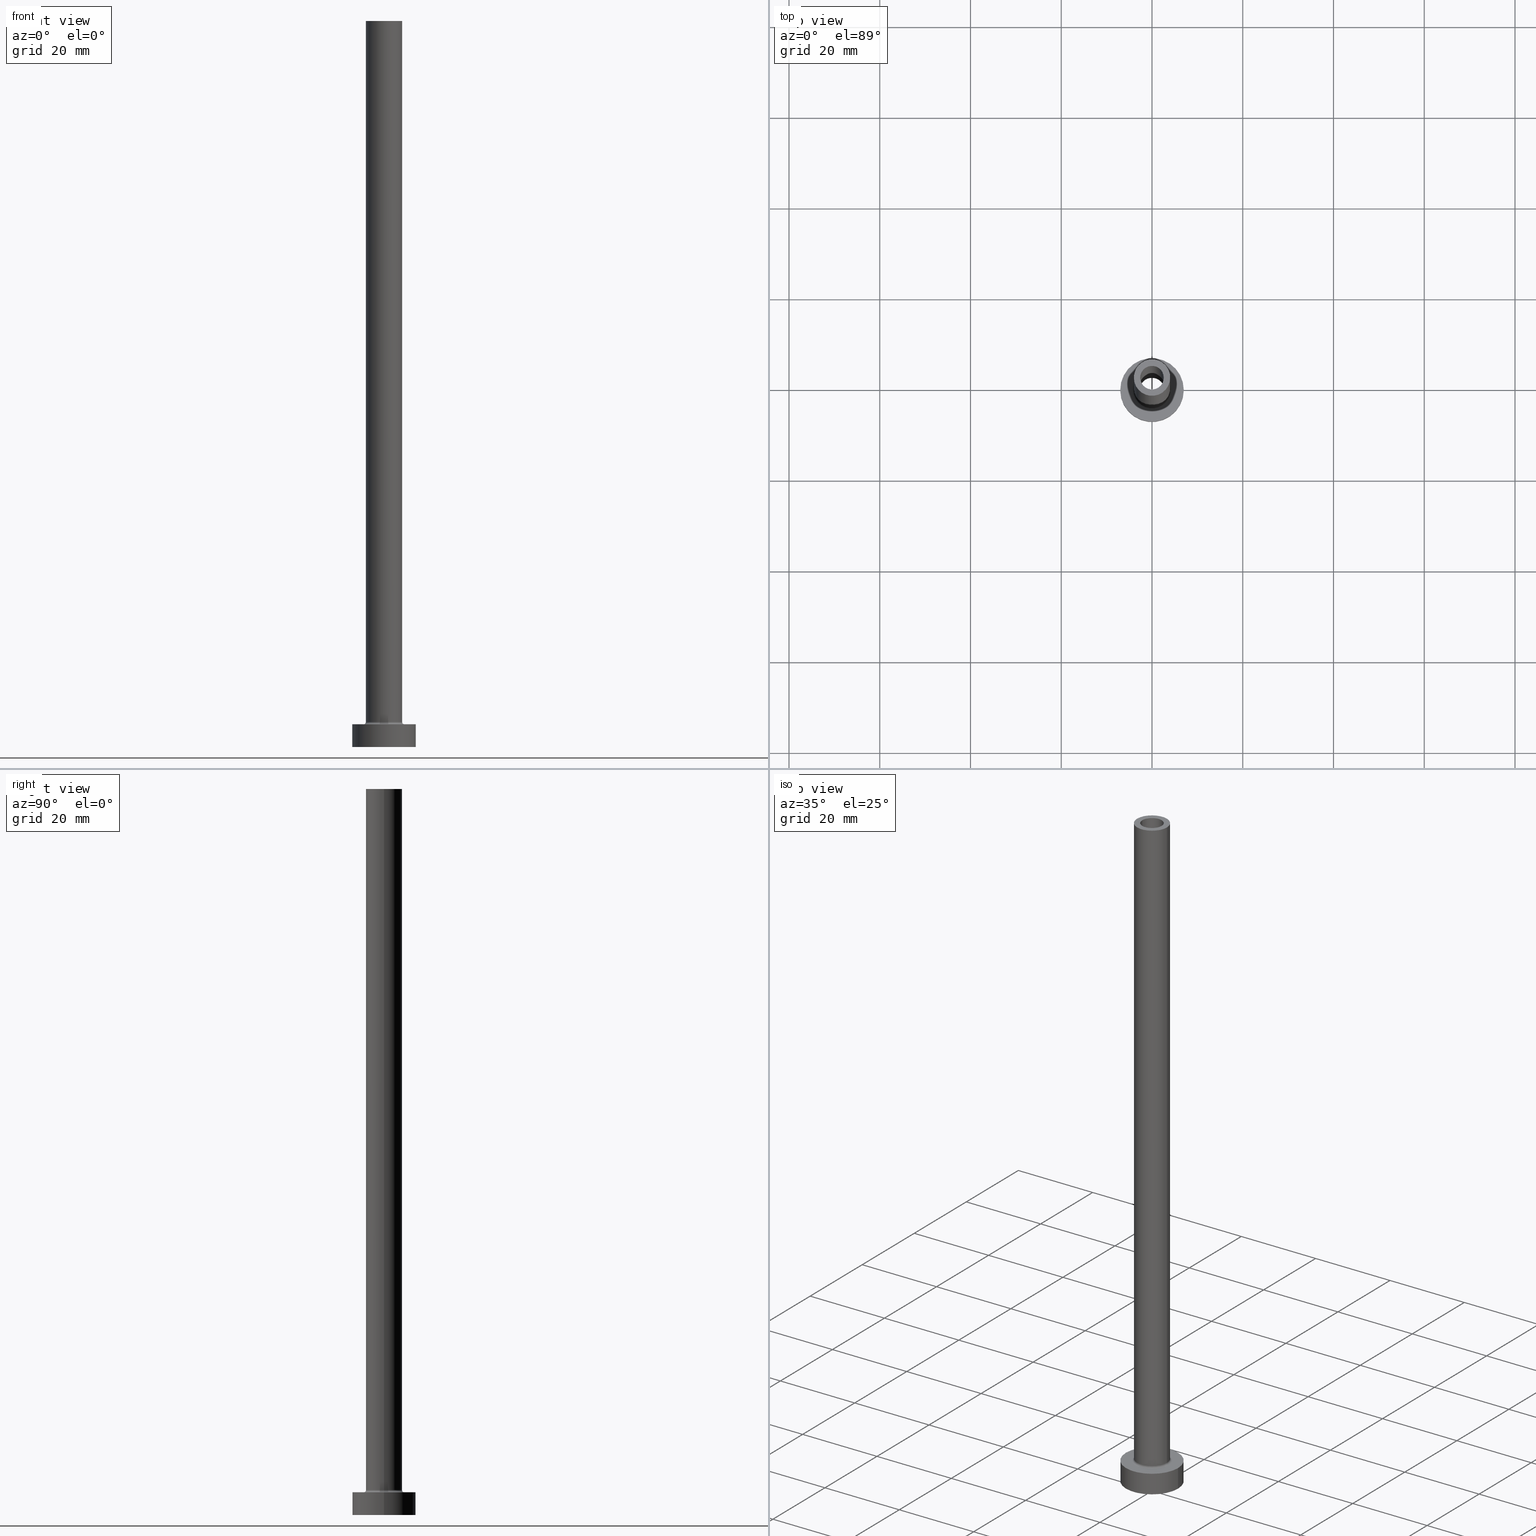
[diagram: canonical four-view strip — front | top / right | iso, engineering-drawing reading convention]
A machine part, canonical four-view strip (front | top / right | iso — engineering-drawing reading convention). The complete STEP part file that produces these views, byte-faithful:
ISO-10303-21;
HEADER;
FILE_DESCRIPTION (( 'STEP AP203' ),
    '1' );
FILE_NAME ('2006.STEP',
    '2023-02-13T10:11:37',
    ( '' ),
    ( '' ),
    'SwSTEP 2.0',
    'SolidWorks 2019',
    '' );
FILE_SCHEMA (( 'CONFIG_CONTROL_DESIGN' ));
ENDSEC;

DATA;
#1 = CARTESIAN_POINT ( 'NONE',  ( 0.000000000000000000, 0.000000000000000000, 115.0000000000000000 ) ) ;
#2 = EDGE_LOOP ( 'NONE', ( #338, #50, #392, #229 ) ) ;
#3 = DIRECTION ( 'NONE',  ( -1.000000000000000000, 0.000000000000000000, 0.000000000000000000 ) ) ;
#4 = EDGE_CURVE ( 'NONE', #188, #99, #250, .T. ) ;
#5 = ORIENTED_EDGE ( 'NONE', *, *, #15, .F. ) ;
#6 = CC_DESIGN_APPROVAL ( #333, ( #211 ) ) ;
#7 = CIRCLE ( 'NONE', #41, 7.000000000000000000 ) ;
#8 = VERTEX_POINT ( 'NONE', #164 ) ;
#9 = DATE_TIME_ROLE ( 'classification_date' ) ;
#10 = CARTESIAN_POINT ( 'NONE',  ( 0.000000000000000000, 0.000000000000000000, 160.0000000000000000 ) ) ;
#11 = EDGE_LOOP ( 'NONE', ( #12, #327, #432, #411 ) ) ;
#12 = ORIENTED_EDGE ( 'NONE', *, *, #398, .F. ) ;
#13 = VECTOR ( 'NONE', #113, 1000.000000000000000 ) ;
#14 = CIRCLE ( 'NONE', #458, 4.000000000000000000 ) ;
#15 = EDGE_CURVE ( 'NONE', #251, #84, #7, .T. ) ;
#16 = AXIS2_PLACEMENT_3D ( 'NONE', #373, #163, #19 ) ;
#17 = CARTESIAN_POINT ( 'NONE',  ( 0.000000000000000000, 0.000000000000000000, 160.0000000000000000 ) ) ;
#18 = CYLINDRICAL_SURFACE ( 'NONE', #236, 7.000000000000000000 ) ;
#19 = DIRECTION ( 'NONE',  ( 1.000000000000000000, 0.000000000000000000, 0.000000000000000000 ) ) ;
#20 = DIRECTION ( 'NONE',  ( -0.000000000000000000, -0.000000000000000000, -1.000000000000000000 ) ) ;
#21 = APPROVAL ( #350, 'NEUR�EN�' ) ;
#22 = MANIFOLD_SOLID_BREP ( 'Odebrat vysunut�m4', #111 ) ;
#23 = CARTESIAN_POINT ( 'NONE',  ( 0.000000000000000000, 0.000000000000000000, 0.000000000000000000 ) ) ;
#24 = AXIS2_PLACEMENT_3D ( 'NONE', #304, #136, #420 ) ;
#25 = CARTESIAN_POINT ( 'NONE',  ( 0.000000000000000000, 0.000000000000000000, 160.0000000000000000 ) ) ;
#26 = MECHANICAL_CONTEXT ( 'NONE', #128, 'mechanical' ) ;
#27 = ORIENTED_EDGE ( 'NONE', *, *, #384, .F. ) ;
#28 = EDGE_CURVE ( 'NONE', #325, #92, #57, .T. ) ;
#29 = DATE_TIME_ROLE ( 'creation_date' ) ;
#30 = DIRECTION ( 'NONE',  ( 1.000000000000000000, 0.000000000000000000, 0.000000000000000000 ) ) ;
#31 = CARTESIAN_POINT ( 'NONE',  ( 0.000000000000000000, 0.000000000000000000, 5.000000000000000000 ) ) ;
#32 = AXIS2_PLACEMENT_3D ( 'NONE', #408, #302, #235 ) ;
#33 = UNCERTAINTY_MEASURE_WITH_UNIT (LENGTH_MEASURE( 1.000000000000000082E-05 ), #334, 'distance_accuracy_value', 'NONE');
#34 = PERSON_AND_ORGANIZATION ( #424, #371 ) ;
#35 = CARTESIAN_POINT ( 'NONE',  ( -2.600000000000000089, 0.000000000000000000, 160.0000000000000000 ) ) ;
#36 = DIRECTION ( 'NONE',  ( 0.000000000000000000, -1.000000000000000000, 0.000000000000000000 ) ) ;
#37 = EDGE_CURVE ( 'NONE', #291, #409, #176, .T. ) ;
#38 = PERSON_AND_ORGANIZATION_ROLE ( 'classification_officer' ) ;
#39 = APPROVAL_PERSON_ORGANIZATION ( #172, #328, #148 ) ;
#40 = CARTESIAN_POINT ( 'NONE',  ( -7.000000000000000000, 0.000000000000000000, 5.000000000000000000 ) ) ;
#41 = AXIS2_PLACEMENT_3D ( 'NONE', #234, #133, #199 ) ;
#42 = EDGE_LOOP ( 'NONE', ( #222, #121, #400, #395 ) ) ;
#43 = VECTOR ( 'NONE', #187, 1000.000000000000000 ) ;
#44 = CARTESIAN_POINT ( 'NONE',  ( -2.750000000000000000, 0.000000000000000000, 122.7781745930520287 ) ) ;
#45 = ORIENTED_EDGE ( 'NONE', *, *, #46, .F. ) ;
#46 = EDGE_CURVE ( 'NONE', #233, #224, #62, .T. ) ;
#47 = FACE_OUTER_BOUND ( 'NONE', #11, .T. ) ;
#48 = ORIENTED_EDGE ( 'NONE', *, *, #90, .T. ) ;
#49 = CARTESIAN_POINT ( 'NONE',  ( 2.750000000000000000, 3.367778697655221012E-16, 122.7781745930520287 ) ) ;
#50 = ORIENTED_EDGE ( 'NONE', *, *, #252, .T. ) ;
#51 = EDGE_LOOP ( 'NONE', ( #330, #378 ) ) ;
#52 = FACE_OUTER_BOUND ( 'NONE', #117, .T. ) ;
#53 = ORIENTED_EDGE ( 'NONE', *, *, #318, .F. ) ;
#54 = LINE ( 'NONE', #375, #77 ) ;
#55 = VERTEX_POINT ( 'NONE', #443 ) ;
#56 = AXIS2_PLACEMENT_3D ( 'NONE', #405, #444, #135 ) ;
#57 = CIRCLE ( 'NONE', #79, 2.750000000000000000 ) ;
#58 = DIRECTION ( 'NONE',  ( 0.000000000000000000, 0.000000000000000000, 1.000000000000000000 ) ) ;
#59 = DIRECTION ( 'NONE',  ( 1.000000000000000000, 0.000000000000000000, 0.000000000000000000 ) ) ;
#60 = CC_DESIGN_PERSON_AND_ORGANIZATION_ASSIGNMENT ( #140, #348, ( #211 ) ) ;
#61 = DIRECTION ( 'NONE',  ( -1.000000000000000000, 0.000000000000000000, 0.000000000000000000 ) ) ;
#62 = LINE ( 'NONE', #173, #430 ) ;
#63 = DIRECTION ( 'NONE',  ( -0.000000000000000000, -0.000000000000000000, -1.000000000000000000 ) ) ;
#64 = AXIS2_PLACEMENT_3D ( 'NONE', #339, #445, #269 ) ;
#65 = AXIS2_PLACEMENT_3D ( 'NONE', #1, #365, #115 ) ;
#66 = DIRECTION ( 'NONE',  ( -0.000000000000000000, -0.000000000000000000, -1.000000000000000000 ) ) ;
#67 = DIRECTION ( 'NONE',  ( 0.000000000000000000, 0.000000000000000000, 1.000000000000000000 ) ) ;
#68 = FACE_BOUND ( 'NONE', #287, .T. ) ;
#69 = LOCAL_TIME ( 11, 11, 37.00000000000000000, #174 ) ;
#70 = CYLINDRICAL_SURFACE ( 'NONE', #150, 2.750000000000000000 ) ;
#71 = TOROIDAL_SURFACE ( 'NONE', #387, 4.500000000000000888, 0.5000000000000000000 ) ;
#72 = APPROVAL_ROLE ( '' ) ;
#73 = EDGE_CURVE ( 'NONE', #8, #369, #116, .T. ) ;
#74 = LINE ( 'NONE', #311, #147 ) ;
#75 = ORIENTED_EDGE ( 'NONE', *, *, #346, .F. ) ;
#76 = SHAPE_DEFINITION_REPRESENTATION ( #94, #322 ) ;
#77 = VECTOR ( 'NONE', #63, 1000.000000000000000 ) ;
#78 = LINE ( 'NONE', #44, #43 ) ;
#79 = AXIS2_PLACEMENT_3D ( 'NONE', #335, #66, #203 ) ;
#80 = VERTEX_POINT ( 'NONE', #440 ) ;
#81 = EDGE_LOOP ( 'NONE', ( #194, #227 ) ) ;
#82 = COORDINATED_UNIVERSAL_TIME_OFFSET ( 1, 0, .AHEAD. ) ;
#83 = DIRECTION ( 'NONE',  ( 1.000000000000000000, 0.000000000000000000, 0.000000000000000000 ) ) ;
#84 = VERTEX_POINT ( 'NONE', #306 ) ;
#85 = CARTESIAN_POINT ( 'NONE',  ( 0.000000000000000000, 0.000000000000000000, 160.0000000000000000 ) ) ;
#86 = VECTOR ( 'NONE', #193, 1000.000000000000000 ) ;
#87 = ORIENTED_EDGE ( 'NONE', *, *, #300, .T. ) ;
#88 = AXIS2_PLACEMENT_3D ( 'NONE', #143, #239, #208 ) ;
#89 = DIRECTION ( 'NONE',  ( -0.000000000000000000, -0.000000000000000000, -1.000000000000000000 ) ) ;
#90 = EDGE_CURVE ( 'NONE', #332, #233, #379, .T. ) ;
#91 = ORIENTED_EDGE ( 'NONE', *, *, #346, .T. ) ;
#92 = VERTEX_POINT ( 'NONE', #138 ) ;
#93 = CARTESIAN_POINT ( 'NONE',  ( 0.000000000000000000, 0.000000000000000000, 160.0000000000000000 ) ) ;
#94 = PRODUCT_DEFINITION_SHAPE ( 'NONE', 'NONE',  #283 ) ;
#95 =( GEOMETRIC_REPRESENTATION_CONTEXT ( 3 ) GLOBAL_UNCERTAINTY_ASSIGNED_CONTEXT ( ( #33 ) ) GLOBAL_UNIT_ASSIGNED_CONTEXT ( ( #334, #200, #167 ) ) REPRESENTATION_CONTEXT ( 'NONE', 'WORKASPACE' ) );
#96 = ADVANCED_FACE ( 'NONE', ( #404 ), #71, .F. ) ;
#97 = CARTESIAN_POINT ( 'NONE',  ( 0.000000000000000000, 0.000000000000000000, 5.000000000000000000 ) ) ;
#98 = FACE_OUTER_BOUND ( 'NONE', #220, .T. ) ;
#99 = VERTEX_POINT ( 'NONE', #168 ) ;
#100 = AXIS2_PLACEMENT_3D ( 'NONE', #442, #131, #165 ) ;
#101 = AXIS2_PLACEMENT_3D ( 'NONE', #31, #213, #184 ) ;
#102 = APPROVAL_DATE_TIME ( #106, #328 ) ;
#103 = APPROVAL_PERSON_ORGANIZATION ( #241, #333, #72 ) ;
#104 = DIRECTION ( 'NONE',  ( 0.000000000000000000, 0.000000000000000000, -1.000000000000000000 ) ) ;
#105 = ADVANCED_FACE ( 'NONE', ( #98 ), #18, .T. ) ;
#106 = DATE_AND_TIME ( #412, #344 ) ;
#107 = CARTESIAN_POINT ( 'NONE',  ( 0.000000000000000000, 0.000000000000000000, 5.000000000000000000 ) ) ;
#108 = DIRECTION ( 'NONE',  ( 0.000000000000000000, 0.000000000000000000, 1.000000000000000000 ) ) ;
#109 = CC_DESIGN_DATE_AND_TIME_ASSIGNMENT ( #359, #9, ( #324 ) ) ;
#110 = CARTESIAN_POINT ( 'NONE',  ( 0.000000000000000000, 0.000000000000000000, 5.000000000000000000 ) ) ;
#111 = CLOSED_SHELL ( 'NONE', ( #340, #162, #96, #292, #217, #105, #240, #271, #144, #261, #122, #280, #191, #410 ) ) ;
#112 = DIRECTION ( 'NONE',  ( 0.000000000000000000, 0.000000000000000000, 1.000000000000000000 ) ) ;
#113 = DIRECTION ( 'NONE',  ( -0.000000000000000000, -0.000000000000000000, -1.000000000000000000 ) ) ;
#114 = EDGE_CURVE ( 'NONE', #155, #224, #169, .T. ) ;
#115 = DIRECTION ( 'NONE',  ( 1.000000000000000000, 0.000000000000000000, 0.000000000000000000 ) ) ;
#116 = CIRCLE ( 'NONE', #364, 4.500000000000000888 ) ;
#117 = EDGE_LOOP ( 'NONE', ( #352, #5 ) ) ;
#118 = LINE ( 'NONE', #49, #86 ) ;
#119 = ORIENTED_EDGE ( 'NONE', *, *, #307, .T. ) ;
#120 = DIRECTION ( 'NONE',  ( -0.000000000000000000, -0.000000000000000000, -1.000000000000000000 ) ) ;
#121 = ORIENTED_EDGE ( 'NONE', *, *, #393, .T. ) ;
#122 = ADVANCED_FACE ( 'NONE', ( #376 ), #226, .F. ) ;
#123 = CARTESIAN_POINT ( 'NONE',  ( 0.000000000000000000, 0.000000000000000000, 0.000000000000000000 ) ) ;
#124 = ORIENTED_EDGE ( 'NONE', *, *, #450, .T. ) ;
#125 = CIRCLE ( 'NONE', #353, 2.750000000000000000 ) ;
#126 = DIRECTION ( 'NONE',  ( 1.000000000000000000, 0.000000000000000000, 0.000000000000000000 ) ) ;
#127 = ORIENTED_EDGE ( 'NONE', *, *, #459, .F. ) ;
#128 = APPLICATION_CONTEXT ( 'configuration controlled 3d designs of mechanical parts and assemblies' ) ;
#129 = DIRECTION ( 'NONE',  ( 1.000000000000000000, 0.000000000000000000, 0.000000000000000000 ) ) ;
#130 = CC_DESIGN_PERSON_AND_ORGANIZATION_ASSIGNMENT ( #238, #385, ( #283 ) ) ;
#131 = DIRECTION ( 'NONE',  ( 0.000000000000000000, 0.000000000000000000, 1.000000000000000000 ) ) ;
#132 = DIRECTION ( 'NONE',  ( -0.000000000000000000, -0.000000000000000000, -1.000000000000000000 ) ) ;
#133 = DIRECTION ( 'NONE',  ( 0.000000000000000000, 0.000000000000000000, 1.000000000000000000 ) ) ;
#134 = PRODUCT ( '2006', '2006', '', ( #26 ) ) ;
#135 = DIRECTION ( 'NONE',  ( 1.000000000000000000, 0.000000000000000000, 0.000000000000000000 ) ) ;
#136 = DIRECTION ( 'NONE',  ( 0.000000000000000000, 0.000000000000000000, 1.000000000000000000 ) ) ;
#137 = EDGE_CURVE ( 'NONE', #192, #8, #183, .T. ) ;
#138 = CARTESIAN_POINT ( 'NONE',  ( 2.750000000000000000, 3.367778697655221012E-16, 0.000000000000000000 ) ) ;
#139 = APPROVAL_PERSON_ORGANIZATION ( #401, #21, #182 ) ;
#140 = PERSON_AND_ORGANIZATION ( #424, #371 ) ;
#141 = DIRECTION ( 'NONE',  ( 0.000000000000000000, 0.000000000000000000, 1.000000000000000000 ) ) ;
#142 = APPLICATION_PROTOCOL_DEFINITION ( 'international standard', 'config_control_design', 1994, #128 ) ;
#143 = CARTESIAN_POINT ( 'NONE',  ( 0.000000000000000000, 0.000000000000000000, 160.0000000000000000 ) ) ;
#144 = ADVANCED_FACE ( 'NONE', ( #389 ), #342, .T. ) ;
#145 = CALENDAR_DATE ( 2023, 13, 2 ) ;
#146 = CARTESIAN_POINT ( 'NONE',  ( -4.500000000000000888, 5.510910596163089556E-16, 5.500000000000005329 ) ) ;
#147 = VECTOR ( 'NONE', #272, 1000.000000000000000 ) ;
#148 = APPROVAL_ROLE ( '' ) ;
#149 = DIRECTION ( 'NONE',  ( 1.224646799147353207E-16, 1.000000000000000000, -0.000000000000000000 ) ) ;
#150 = AXIS2_PLACEMENT_3D ( 'NONE', #275, #278, #349 ) ;
#151 = ORIENTED_EDGE ( 'NONE', *, *, #231, .F. ) ;
#152 = EDGE_LOOP ( 'NONE', ( #363, #75 ) ) ;
#153 = CC_DESIGN_APPROVAL ( #328, ( #283 ) ) ;
#154 = CARTESIAN_POINT ( 'NONE',  ( 0.000000000000000000, 0.000000000000000000, 5.000000000000000000 ) ) ;
#155 = VERTEX_POINT ( 'NONE', #179 ) ;
#156 = CALENDAR_DATE ( 2023, 13, 2 ) ;
#157 = EDGE_LOOP ( 'NONE', ( #216, #119, #246, #53 ) ) ;
#158 = CYLINDRICAL_SURFACE ( 'NONE', #456, 4.000000000000000000 ) ;
#159 = EDGE_LOOP ( 'NONE', ( #428, #439 ) ) ;
#160 = AXIS2_PLACEMENT_3D ( 'NONE', #452, #67, #454 ) ;
#161 = ORIENTED_EDGE ( 'NONE', *, *, #209, .F. ) ;
#162 = ADVANCED_FACE ( 'NONE', ( #243 ), #70, .F. ) ;
#163 = DIRECTION ( 'NONE',  ( 0.000000000000000000, 0.000000000000000000, 1.000000000000000000 ) ) ;
#164 = CARTESIAN_POINT ( 'NONE',  ( 4.500000000000000888, 0.000000000000000000, 5.000000000000002665 ) ) ;
#165 = DIRECTION ( 'NONE',  ( 1.000000000000000000, 0.000000000000000000, 0.000000000000000000 ) ) ;
#166 = DIRECTION ( 'NONE',  ( 0.000000000000000000, 0.000000000000000000, 1.000000000000000000 ) ) ;
#167 =( NAMED_UNIT ( * ) SI_UNIT ( $, .STERADIAN. ) SOLID_ANGLE_UNIT ( ) );
#168 = CARTESIAN_POINT ( 'NONE',  ( 4.000000000000000000, 4.898587196589412829E-16, 160.0000000000000000 ) ) ;
#169 = CIRCLE ( 'NONE', #32, 2.600000000000000089 ) ;
#170 = DIRECTION ( 'NONE',  ( 0.000000000000000000, 0.000000000000000000, 1.000000000000000000 ) ) ;
#171 = CARTESIAN_POINT ( 'NONE',  ( 4.500000000000000888, 0.000000000000000000, 5.500000000000005329 ) ) ;
#172 = PERSON_AND_ORGANIZATION ( #424, #371 ) ;
#173 = CARTESIAN_POINT ( 'NONE',  ( 2.600000000000000089, 3.184081677783117698E-16, 160.0000000000000000 ) ) ;
#174 = COORDINATED_UNIVERSAL_TIME_OFFSET ( 1, 0, .AHEAD. ) ;
#175 = CARTESIAN_POINT ( 'NONE',  ( 0.000000000000000000, 0.000000000000000000, 5.500000000000005329 ) ) ;
#176 = CIRCLE ( 'NONE', #64, 7.000000000000000000 ) ;
#177 = CC_DESIGN_PERSON_AND_ORGANIZATION_ASSIGNMENT ( #34, #449, ( #211 ) ) ;
#178 = CARTESIAN_POINT ( 'NONE',  ( 0.000000000000000000, 0.000000000000000000, 115.0000000000000000 ) ) ;
#179 = CARTESIAN_POINT ( 'NONE',  ( -2.600000000000000089, 0.000000000000000000, 115.0000000000000000 ) ) ;
#180 = SECURITY_CLASSIFICATION_LEVEL ( 'unclassified' ) ;
#181 = PLANE ( 'NONE',  #296 ) ;
#182 = APPROVAL_ROLE ( '' ) ;
#183 = CIRCLE ( 'NONE', #331, 0.5000000000000004441 ) ;
#184 = DIRECTION ( 'NONE',  ( -1.000000000000000000, 0.000000000000000000, 0.000000000000000000 ) ) ;
#185 = AXIS2_PLACEMENT_3D ( 'NONE', #93, #202, #61 ) ;
#186 = EDGE_CURVE ( 'NONE', #192, #55, #14, .T. ) ;
#187 = DIRECTION ( 'NONE',  ( 0.000000000000000000, 0.000000000000000000, -1.000000000000000000 ) ) ;
#188 = VERTEX_POINT ( 'NONE', #309 ) ;
#189 = CARTESIAN_POINT ( 'NONE',  ( -4.500000000000000888, 5.510910596163088569E-16, 5.000000000000002665 ) ) ;
#190 = ORIENTED_EDGE ( 'NONE', *, *, #137, .F. ) ;
#191 = ADVANCED_FACE ( 'NONE', ( #68, #317 ), #386, .F. ) ;
#192 = VERTEX_POINT ( 'NONE', #451 ) ;
#193 = DIRECTION ( 'NONE',  ( 0.000000000000000000, 0.000000000000000000, -1.000000000000000000 ) ) ;
#194 = ORIENTED_EDGE ( 'NONE', *, *, #73, .T. ) ;
#195 = ORIENTED_EDGE ( 'NONE', *, *, #366, .F. ) ;
#196 = FACE_OUTER_BOUND ( 'NONE', #206, .T. ) ;
#197 = VECTOR ( 'NONE', #431, 1000.000000000000000 ) ;
#198 = ORIENTED_EDGE ( 'NONE', *, *, #398, .T. ) ;
#199 = DIRECTION ( 'NONE',  ( 1.000000000000000000, 0.000000000000000000, 0.000000000000000000 ) ) ;
#200 =( NAMED_UNIT ( * ) PLANE_ANGLE_UNIT ( ) SI_UNIT ( $, .RADIAN. ) );
#201 = EDGE_LOOP ( 'NONE', ( #374, #198 ) ) ;
#202 = DIRECTION ( 'NONE',  ( 0.000000000000000000, 0.000000000000000000, -1.000000000000000000 ) ) ;
#203 = DIRECTION ( 'NONE',  ( 1.000000000000000000, 0.000000000000000000, 0.000000000000000000 ) ) ;
#204 = EDGE_CURVE ( 'NONE', #409, #291, #258, .T. ) ;
#205 = CIRCLE ( 'NONE', #438, 2.600000000000000089 ) ;
#206 = EDGE_LOOP ( 'NONE', ( #45, #91, #434, #372 ) ) ;
#207 = APPLICATION_CONTEXT ( 'configuration controlled 3d designs of mechanical parts and assemblies' ) ;
#208 = DIRECTION ( 'NONE',  ( -1.000000000000000000, 0.000000000000000000, 0.000000000000000000 ) ) ;
#209 = EDGE_CURVE ( 'NONE', #55, #369, #295, .T. ) ;
#210 = LINE ( 'NONE', #35, #355 ) ;
#211 = PRODUCT_DEFINITION_FORMATION_WITH_SPECIFIED_SOURCE ( 'LIBOVOLN�', '', #134, .NOT_KNOWN. ) ;
#212 = CALENDAR_DATE ( 2023, 13, 2 ) ;
#213 = DIRECTION ( 'NONE',  ( -0.000000000000000000, -0.000000000000000000, -1.000000000000000000 ) ) ;
#214 = FACE_BOUND ( 'NONE', #81, .T. ) ;
#215 = DIRECTION ( 'NONE',  ( 1.000000000000000000, 0.000000000000000000, 0.000000000000000000 ) ) ;
#216 = ORIENTED_EDGE ( 'NONE', *, *, #425, .T. ) ;
#217 = ADVANCED_FACE ( 'NONE', ( #242 ), #417, .T. ) ;
#218 = LINE ( 'NONE', #357, #197 ) ;
#219 = AXIS2_PLACEMENT_3D ( 'NONE', #123, #329, #257 ) ;
#220 = EDGE_LOOP ( 'NONE', ( #320, #282, #284, #124 ) ) ;
#221 = DIRECTION ( 'NONE',  ( -1.000000000000000000, 0.000000000000000000, 0.000000000000000000 ) ) ;
#222 = ORIENTED_EDGE ( 'NONE', *, *, #307, .F. ) ;
#223 = DATE_AND_TIME ( #281, #237 ) ;
#224 = VERTEX_POINT ( 'NONE', #347 ) ;
#225 = FACE_BOUND ( 'NONE', #51, .T. ) ;
#226 = TOROIDAL_SURFACE ( 'NONE', #24, 4.500000000000000888, 0.5000000000000000000 ) ;
#227 = ORIENTED_EDGE ( 'NONE', *, *, #366, .T. ) ;
#228 = DIRECTION ( 'NONE',  ( 1.000000000000000000, 0.000000000000000000, 0.000000000000000000 ) ) ;
#229 = ORIENTED_EDGE ( 'NONE', *, *, #268, .F. ) ;
#230 = DIRECTION ( 'NONE',  ( 0.000000000000000000, 0.000000000000000000, 1.000000000000000000 ) ) ;
#231 = EDGE_CURVE ( 'NONE', #332, #155, #210, .T. ) ;
#232 = CIRCLE ( 'NONE', #273, 2.750000000000000000 ) ;
#233 = VERTEX_POINT ( 'NONE', #461 ) ;
#234 = CARTESIAN_POINT ( 'NONE',  ( 0.000000000000000000, 0.000000000000000000, 0.000000000000000000 ) ) ;
#235 = DIRECTION ( 'NONE',  ( 1.000000000000000000, 0.000000000000000000, 0.000000000000000000 ) ) ;
#236 = AXIS2_PLACEMENT_3D ( 'NONE', #441, #132, #266 ) ;
#237 = LOCAL_TIME ( 11, 11, 37.00000000000000000, #460 ) ;
#238 = PERSON_AND_ORGANIZATION ( #424, #371 ) ;
#239 = DIRECTION ( 'NONE',  ( -0.000000000000000000, -0.000000000000000000, -1.000000000000000000 ) ) ;
#240 = ADVANCED_FACE ( 'NONE', ( #214, #422 ), #413, .T. ) ;
#241 = PERSON_AND_ORGANIZATION ( #424, #371 ) ;
#242 = FACE_OUTER_BOUND ( 'NONE', #2, .T. ) ;
#243 = FACE_OUTER_BOUND ( 'NONE', #157, .T. ) ;
#244 = CARTESIAN_POINT ( 'NONE',  ( 7.000000000000000000, 8.572527594031473190E-16, 0.000000000000000000 ) ) ;
#245 = DIRECTION ( 'NONE',  ( 1.000000000000000000, 0.000000000000000000, -0.000000000000000000 ) ) ;
#246 = ORIENTED_EDGE ( 'NONE', *, *, #380, .T. ) ;
#247 = DIRECTION ( 'NONE',  ( 0.000000000000000000, 0.000000000000000000, -1.000000000000000000 ) ) ;
#248 = ORIENTED_EDGE ( 'NONE', *, *, #73, .F. ) ;
#249 = AXIS2_PLACEMENT_3D ( 'NONE', #10, #288, #3 ) ;
#250 = CIRCLE ( 'NONE', #414, 4.000000000000000000 ) ;
#251 = VERTEX_POINT ( 'NONE', #244 ) ;
#252 = EDGE_CURVE ( 'NONE', #409, #251, #74, .T. ) ;
#253 = CARTESIAN_POINT ( 'NONE',  ( 0.000000000000000000, 0.000000000000000000, 0.000000000000000000 ) ) ;
#254 = ORIENTED_EDGE ( 'NONE', *, *, #209, .T. ) ;
#255 = FACE_OUTER_BOUND ( 'NONE', #403, .T. ) ;
#256 = ORIENTED_EDGE ( 'NONE', *, *, #4, .F. ) ;
#257 = DIRECTION ( 'NONE',  ( 1.000000000000000000, 0.000000000000000000, -0.000000000000000000 ) ) ;
#258 = CIRCLE ( 'NONE', #316, 7.000000000000000000 ) ;
#259 = AXIS2_PLACEMENT_3D ( 'NONE', #178, #108, #245 ) ;
#260 = ORIENTED_EDGE ( 'NONE', *, *, #137, .T. ) ;
#261 = ADVANCED_FACE ( 'NONE', ( #457, #453 ), #181, .T. ) ;
#262 = ORIENTED_EDGE ( 'NONE', *, *, #114, .T. ) ;
#263 = CARTESIAN_POINT ( 'NONE',  ( 0.000000000000000000, 0.000000000000000000, 115.0000000000000000 ) ) ;
#264 = DIRECTION ( 'NONE',  ( 1.000000000000000000, 0.000000000000000000, 0.000000000000000000 ) ) ;
#265 = AXIS2_PLACEMENT_3D ( 'NONE', #23, #170, #301 ) ;
#266 = DIRECTION ( 'NONE',  ( -1.000000000000000000, 0.000000000000000000, 0.000000000000000000 ) ) ;
#267 = AXIS2_PLACEMENT_3D ( 'NONE', #25, #447, #129 ) ;
#268 = EDGE_CURVE ( 'NONE', #291, #84, #351, .T. ) ;
#269 = DIRECTION ( 'NONE',  ( 1.000000000000000000, 0.000000000000000000, 0.000000000000000000 ) ) ;
#270 = ORIENTED_EDGE ( 'NONE', *, *, #204, .T. ) ;
#271 = ADVANCED_FACE ( 'NONE', ( #225, #52 ), #427, .F. ) ;
#272 = DIRECTION ( 'NONE',  ( -0.000000000000000000, -0.000000000000000000, -1.000000000000000000 ) ) ;
#273 = AXIS2_PLACEMENT_3D ( 'NONE', #253, #396, #83 ) ;
#274 = PERSON_AND_ORGANIZATION ( #424, #371 ) ;
#275 = CARTESIAN_POINT ( 'NONE',  ( 0.000000000000000000, 0.000000000000000000, 122.7781745930520287 ) ) ;
#276 = CARTESIAN_POINT ( 'NONE',  ( 0.000000000000000000, 0.000000000000000000, 160.0000000000000000 ) ) ;
#277 = VERTEX_POINT ( 'NONE', #360 ) ;
#278 = DIRECTION ( 'NONE',  ( 0.000000000000000000, 0.000000000000000000, -1.000000000000000000 ) ) ;
#279 = CIRCLE ( 'NONE', #56, 4.000000000000000000 ) ;
#280 = ADVANCED_FACE ( 'NONE', ( #426 ), #362, .F. ) ;
#281 = CALENDAR_DATE ( 2023, 13, 2 ) ;
#282 = ORIENTED_EDGE ( 'NONE', *, *, #37, .F. ) ;
#283 = PRODUCT_DEFINITION ( 'NEZN�M�', '', #211, #446 ) ;
#284 = ORIENTED_EDGE ( 'NONE', *, *, #268, .T. ) ;
#285 = AXIS2_PLACEMENT_3D ( 'NONE', #154, #89, #228 ) ;
#286 = DIRECTION ( 'NONE',  ( 0.000000000000000000, 0.000000000000000000, 1.000000000000000000 ) ) ;
#287 = EDGE_LOOP ( 'NONE', ( #262, #361 ) ) ;
#288 = DIRECTION ( 'NONE',  ( 0.000000000000000000, 0.000000000000000000, -1.000000000000000000 ) ) ;
#289 = EDGE_LOOP ( 'NONE', ( #367, #270 ) ) ;
#290 = CYLINDRICAL_SURFACE ( 'NONE', #249, 2.600000000000000089 ) ;
#291 = VERTEX_POINT ( 'NONE', #435 ) ;
#292 = ADVANCED_FACE ( 'NONE', ( #47 ), #158, .T. ) ;
#293 = LOCAL_TIME ( 11, 11, 37.00000000000000000, #82 ) ;
#294 = CARTESIAN_POINT ( 'NONE',  ( 7.000000000000000000, 8.572527594031473190E-16, 5.000000000000000000 ) ) ;
#295 = CIRCLE ( 'NONE', #437, 0.5000000000000004441 ) ;
#296 = AXIS2_PLACEMENT_3D ( 'NONE', #276, #315, #423 ) ;
#297 = EDGE_LOOP ( 'NONE', ( #161, #358, #260, #195 ) ) ;
#298 = DIRECTION ( 'NONE',  ( 0.000000000000000000, 0.000000000000000000, -1.000000000000000000 ) ) ;
#299 = CARTESIAN_POINT ( 'NONE',  ( 0.000000000000000000, 0.000000000000000000, 5.500000000000005329 ) ) ;
#300 = EDGE_CURVE ( 'NONE', #188, #55, #218, .T. ) ;
#301 = DIRECTION ( 'NONE',  ( 1.000000000000000000, 0.000000000000000000, 0.000000000000000000 ) ) ;
#302 = DIRECTION ( 'NONE',  ( 0.000000000000000000, 0.000000000000000000, 1.000000000000000000 ) ) ;
#303 = CYLINDRICAL_SURFACE ( 'NONE', #185, 2.600000000000000089 ) ;
#304 = CARTESIAN_POINT ( 'NONE',  ( 0.000000000000000000, 0.000000000000000000, 5.500000000000005329 ) ) ;
#305 = COORDINATED_UNIVERSAL_TIME_OFFSET ( 1, 0, .AHEAD. ) ;
#306 = CARTESIAN_POINT ( 'NONE',  ( -7.000000000000000000, 0.000000000000000000, 0.000000000000000000 ) ) ;
#307 = EDGE_CURVE ( 'NONE', #277, #92, #118, .T. ) ;
#308 = APPROVAL_DATE_TIME ( #345, #333 ) ;
#309 = CARTESIAN_POINT ( 'NONE',  ( -4.000000000000000000, 0.000000000000000000, 160.0000000000000000 ) ) ;
#310 = CIRCLE ( 'NONE', #16, 2.750000000000000000 ) ;
#311 = CARTESIAN_POINT ( 'NONE',  ( 7.000000000000000000, 8.572527594031473190E-16, 5.000000000000000000 ) ) ;
#312 = DIRECTION ( 'NONE',  ( 0.000000000000000000, 0.000000000000000000, -1.000000000000000000 ) ) ;
#313 = PRODUCT_RELATED_PRODUCT_CATEGORY ( 'detail', '', ( #134 ) ) ;
#314 = PERSON_AND_ORGANIZATION_ROLE ( 'design_owner' ) ;
#315 = DIRECTION ( 'NONE',  ( 0.000000000000000000, 0.000000000000000000, 1.000000000000000000 ) ) ;
#316 = AXIS2_PLACEMENT_3D ( 'NONE', #107, #141, #215 ) ;
#317 = FACE_OUTER_BOUND ( 'NONE', #159, .T. ) ;
#318 = EDGE_CURVE ( 'NONE', #80, #325, #78, .T. ) ;
#319 = DIRECTION ( 'NONE',  ( 1.000000000000000000, 0.000000000000000000, 0.000000000000000000 ) ) ;
#320 = ORIENTED_EDGE ( 'NONE', *, *, #252, .F. ) ;
#321 = CARTESIAN_POINT ( 'NONE',  ( 0.000000000000000000, 0.000000000000000000, 122.7781745930520287 ) ) ;
#322 = ADVANCED_BREP_SHAPE_REPRESENTATION ( '2006', ( #22, #160 ), #95 ) ;
#323 = EDGE_LOOP ( 'NONE', ( #127, #254, #248, #190 ) ) ;
#324 = SECURITY_CLASSIFICATION ( '', '', #180 ) ;
#325 = VERTEX_POINT ( 'NONE', #402 ) ;
#326 = CARTESIAN_POINT ( 'NONE',  ( -2.600000000000000089, 0.000000000000000000, 160.0000000000000000 ) ) ;
#327 = ORIENTED_EDGE ( 'NONE', *, *, #384, .T. ) ;
#328 = APPROVAL ( #416, 'NEUR�EN�' ) ;
#329 = DIRECTION ( 'NONE',  ( 0.000000000000000000, 0.000000000000000000, 1.000000000000000000 ) ) ;
#330 = ORIENTED_EDGE ( 'NONE', *, *, #28, .F. ) ;
#331 = AXIS2_PLACEMENT_3D ( 'NONE', #171, #36, #104 ) ;
#332 = VERTEX_POINT ( 'NONE', #326 ) ;
#333 = APPROVAL ( #388, 'NEUR�EN�' ) ;
#334 =( LENGTH_UNIT ( ) NAMED_UNIT ( * ) SI_UNIT ( .MILLI., .METRE. ) );
#335 = CARTESIAN_POINT ( 'NONE',  ( 0.000000000000000000, 0.000000000000000000, 0.000000000000000000 ) ) ;
#336 = DIRECTION ( 'NONE',  ( 1.000000000000000000, 0.000000000000000000, 0.000000000000000000 ) ) ;
#337 = CC_DESIGN_SECURITY_CLASSIFICATION ( #324, ( #211 ) ) ;
#338 = ORIENTED_EDGE ( 'NONE', *, *, #204, .F. ) ;
#339 = CARTESIAN_POINT ( 'NONE',  ( 0.000000000000000000, 0.000000000000000000, 5.000000000000000000 ) ) ;
#340 = ADVANCED_FACE ( 'NONE', ( #255 ), #290, .F. ) ;
#341 = PERSON_AND_ORGANIZATION ( #424, #371 ) ;
#342 = CYLINDRICAL_SURFACE ( 'NONE', #88, 4.000000000000000000 ) ;
#343 = DIRECTION ( 'NONE',  ( 1.000000000000000000, 0.000000000000000000, -0.000000000000000000 ) ) ;
#344 = LOCAL_TIME ( 11, 11, 37.00000000000000000, #305 ) ;
#345 = DATE_AND_TIME ( #212, #69 ) ;
#346 = EDGE_CURVE ( 'NONE', #233, #332, #205, .T. ) ;
#347 = CARTESIAN_POINT ( 'NONE',  ( 2.600000000000000089, 3.184081677783117698E-16, 115.0000000000000000 ) ) ;
#348 = PERSON_AND_ORGANIZATION_ROLE ( 'design_supplier' ) ;
#349 = DIRECTION ( 'NONE',  ( -1.000000000000000000, 0.000000000000000000, 0.000000000000000000 ) ) ;
#350 = APPROVAL_STATUS ( 'not_yet_approved' ) ;
#351 = LINE ( 'NONE', #40, #13 ) ;
#352 = ORIENTED_EDGE ( 'NONE', *, *, #450, .F. ) ;
#353 = AXIS2_PLACEMENT_3D ( 'NONE', #263, #58, #126 ) ;
#354 = EDGE_CURVE ( 'NONE', #224, #155, #448, .T. ) ;
#355 = VECTOR ( 'NONE', #312, 1000.000000000000000 ) ;
#356 = AXIS2_PLACEMENT_3D ( 'NONE', #321, #247, #221 ) ;
#357 = CARTESIAN_POINT ( 'NONE',  ( -4.000000000000000000, 0.000000000000000000, 160.0000000000000000 ) ) ;
#358 = ORIENTED_EDGE ( 'NONE', *, *, #186, .F. ) ;
#359 = DATE_AND_TIME ( #156, #293 ) ;
#360 = CARTESIAN_POINT ( 'NONE',  ( 2.750000000000000000, 3.367778697655221012E-16, 115.0000000000000000 ) ) ;
#361 = ORIENTED_EDGE ( 'NONE', *, *, #354, .T. ) ;
#362 = CYLINDRICAL_SURFACE ( 'NONE', #356, 2.750000000000000000 ) ;
#363 = ORIENTED_EDGE ( 'NONE', *, *, #90, .F. ) ;
#364 = AXIS2_PLACEMENT_3D ( 'NONE', #97, #20, #59 ) ;
#365 = DIRECTION ( 'NONE',  ( 0.000000000000000000, 0.000000000000000000, 1.000000000000000000 ) ) ;
#366 = EDGE_CURVE ( 'NONE', #369, #8, #429, .T. ) ;
#367 = ORIENTED_EDGE ( 'NONE', *, *, #37, .T. ) ;
#368 = EDGE_LOOP ( 'NONE', ( #27, #256, #87, #436 ) ) ;
#369 = VERTEX_POINT ( 'NONE', #189 ) ;
#370 = CC_DESIGN_PERSON_AND_ORGANIZATION_ASSIGNMENT ( #341, #314, ( #134 ) ) ;
#371 = ORGANIZATION ( 'NEUR�EN�', 'NEUR�EN�', '' ) ;
#372 = ORIENTED_EDGE ( 'NONE', *, *, #354, .F. ) ;
#373 = CARTESIAN_POINT ( 'NONE',  ( 0.000000000000000000, 0.000000000000000000, 115.0000000000000000 ) ) ;
#374 = ORIENTED_EDGE ( 'NONE', *, *, #4, .T. ) ;
#375 = CARTESIAN_POINT ( 'NONE',  ( 4.000000000000000000, 4.898587196589412829E-16, 160.0000000000000000 ) ) ;
#376 = FACE_OUTER_BOUND ( 'NONE', #297, .T. ) ;
#377 = CIRCLE ( 'NONE', #265, 7.000000000000000000 ) ;
#378 = ORIENTED_EDGE ( 'NONE', *, *, #380, .F. ) ;
#379 = CIRCLE ( 'NONE', #267, 2.600000000000000089 ) ;
#380 = EDGE_CURVE ( 'NONE', #92, #325, #232, .T. ) ;
#381 = CIRCLE ( 'NONE', #100, 4.000000000000000000 ) ;
#382 = COORDINATED_UNIVERSAL_TIME_OFFSET ( 1, 0, .AHEAD. ) ;
#383 = DIRECTION ( 'NONE',  ( -1.000000000000000000, 1.224646799147351482E-16, 0.000000000000000000 ) ) ;
#384 = EDGE_CURVE ( 'NONE', #99, #192, #54, .T. ) ;
#385 = PERSON_AND_ORGANIZATION_ROLE ( 'creator' ) ;
#386 = PLANE ( 'NONE',  #259 ) ;
#387 = AXIS2_PLACEMENT_3D ( 'NONE', #299, #230, #264 ) ;
#388 = APPROVAL_STATUS ( 'not_yet_approved' ) ;
#389 = FACE_OUTER_BOUND ( 'NONE', #368, .T. ) ;
#390 = APPROVAL_DATE_TIME ( #223, #21 ) ;
#391 = DIRECTION ( 'NONE',  ( -1.000000000000000000, 0.000000000000000000, 0.000000000000000000 ) ) ;
#392 = ORIENTED_EDGE ( 'NONE', *, *, #15, .T. ) ;
#393 = EDGE_CURVE ( 'NONE', #277, #80, #310, .T. ) ;
#394 = AXIS2_PLACEMENT_3D ( 'NONE', #110, #112, #343 ) ;
#395 = ORIENTED_EDGE ( 'NONE', *, *, #28, .T. ) ;
#396 = DIRECTION ( 'NONE',  ( -0.000000000000000000, -0.000000000000000000, -1.000000000000000000 ) ) ;
#397 = ORIENTED_EDGE ( 'NONE', *, *, #114, .F. ) ;
#398 = EDGE_CURVE ( 'NONE', #99, #188, #381, .T. ) ;
#399 = CARTESIAN_POINT ( 'NONE',  ( 0.000000000000000000, 0.000000000000000000, 160.0000000000000000 ) ) ;
#400 = ORIENTED_EDGE ( 'NONE', *, *, #318, .T. ) ;
#401 = PERSON_AND_ORGANIZATION ( #424, #371 ) ;
#402 = CARTESIAN_POINT ( 'NONE',  ( -2.750000000000000000, 0.000000000000000000, 0.000000000000000000 ) ) ;
#403 = EDGE_LOOP ( 'NONE', ( #48, #406, #397, #151 ) ) ;
#404 = FACE_OUTER_BOUND ( 'NONE', #323, .T. ) ;
#405 = CARTESIAN_POINT ( 'NONE',  ( 0.000000000000000000, 0.000000000000000000, 5.500000000000005329 ) ) ;
#406 = ORIENTED_EDGE ( 'NONE', *, *, #46, .T. ) ;
#407 = LOCAL_TIME ( 11, 11, 37.00000000000000000, #382 ) ;
#408 = CARTESIAN_POINT ( 'NONE',  ( 0.000000000000000000, 0.000000000000000000, 115.0000000000000000 ) ) ;
#409 = VERTEX_POINT ( 'NONE', #294 ) ;
#410 = ADVANCED_FACE ( 'NONE', ( #196 ), #303, .F. ) ;
#411 = ORIENTED_EDGE ( 'NONE', *, *, #300, .F. ) ;
#412 = CALENDAR_DATE ( 2023, 13, 2 ) ;
#413 = PLANE ( 'NONE',  #394 ) ;
#414 = AXIS2_PLACEMENT_3D ( 'NONE', #17, #166, #336 ) ;
#415 = CC_DESIGN_APPROVAL ( #21, ( #324 ) ) ;
#416 = APPROVAL_STATUS ( 'not_yet_approved' ) ;
#417 = CYLINDRICAL_SURFACE ( 'NONE', #101, 7.000000000000000000 ) ;
#418 = CC_DESIGN_DATE_AND_TIME_ASSIGNMENT ( #421, #29, ( #283 ) ) ;
#419 = APPLICATION_PROTOCOL_DEFINITION ( 'international standard', 'config_control_design', 1994, #207 ) ;
#420 = DIRECTION ( 'NONE',  ( 1.000000000000000000, 0.000000000000000000, 0.000000000000000000 ) ) ;
#421 = DATE_AND_TIME ( #145, #407 ) ;
#422 = FACE_OUTER_BOUND ( 'NONE', #289, .T. ) ;
#423 = DIRECTION ( 'NONE',  ( 1.000000000000000000, 0.000000000000000000, -0.000000000000000000 ) ) ;
#424 = PERSON ( 'NEUR�EN�', 'NEUR�EN�', 'NEUR�EN�', ('NEUR�EN�'), ('NEUR�EN�'), ('NEUR�EN�') ) ;
#425 = EDGE_CURVE ( 'NONE', #80, #277, #125, .T. ) ;
#426 = FACE_OUTER_BOUND ( 'NONE', #42, .T. ) ;
#427 = PLANE ( 'NONE',  #219 ) ;
#428 = ORIENTED_EDGE ( 'NONE', *, *, #425, .F. ) ;
#429 = CIRCLE ( 'NONE', #285, 4.500000000000000888 ) ;
#430 = VECTOR ( 'NONE', #298, 1000.000000000000000 ) ;
#431 = DIRECTION ( 'NONE',  ( -0.000000000000000000, -0.000000000000000000, -1.000000000000000000 ) ) ;
#432 = ORIENTED_EDGE ( 'NONE', *, *, #186, .T. ) ;
#433 = CC_DESIGN_PERSON_AND_ORGANIZATION_ASSIGNMENT ( #274, #38, ( #324 ) ) ;
#434 = ORIENTED_EDGE ( 'NONE', *, *, #231, .T. ) ;
#435 = CARTESIAN_POINT ( 'NONE',  ( -7.000000000000000000, 0.000000000000000000, 5.000000000000000000 ) ) ;
#436 = ORIENTED_EDGE ( 'NONE', *, *, #459, .T. ) ;
#437 = AXIS2_PLACEMENT_3D ( 'NONE', #146, #149, #383 ) ;
#438 = AXIS2_PLACEMENT_3D ( 'NONE', #85, #286, #319 ) ;
#439 = ORIENTED_EDGE ( 'NONE', *, *, #393, .F. ) ;
#440 = CARTESIAN_POINT ( 'NONE',  ( -2.750000000000000000, 0.000000000000000000, 115.0000000000000000 ) ) ;
#441 = CARTESIAN_POINT ( 'NONE',  ( 0.000000000000000000, 0.000000000000000000, 5.000000000000000000 ) ) ;
#442 = CARTESIAN_POINT ( 'NONE',  ( 0.000000000000000000, 0.000000000000000000, 160.0000000000000000 ) ) ;
#443 = CARTESIAN_POINT ( 'NONE',  ( -4.000000000000000000, 0.000000000000000000, 5.500000000000005329 ) ) ;
#444 = DIRECTION ( 'NONE',  ( 0.000000000000000000, 0.000000000000000000, 1.000000000000000000 ) ) ;
#445 = DIRECTION ( 'NONE',  ( 0.000000000000000000, 0.000000000000000000, 1.000000000000000000 ) ) ;
#446 = DESIGN_CONTEXT ( 'detailed design', #207, 'design' ) ;
#447 = DIRECTION ( 'NONE',  ( 0.000000000000000000, 0.000000000000000000, 1.000000000000000000 ) ) ;
#448 = CIRCLE ( 'NONE', #65, 2.600000000000000089 ) ;
#449 = PERSON_AND_ORGANIZATION_ROLE ( 'creator' ) ;
#450 = EDGE_CURVE ( 'NONE', #84, #251, #377, .T. ) ;
#451 = CARTESIAN_POINT ( 'NONE',  ( 4.000000000000000000, 4.898587196589412829E-16, 5.500000000000005329 ) ) ;
#452 = CARTESIAN_POINT ( 'NONE',  ( 0.000000000000000000, 0.000000000000000000, 0.000000000000000000 ) ) ;
#453 = FACE_OUTER_BOUND ( 'NONE', #201, .T. ) ;
#454 = DIRECTION ( 'NONE',  ( 1.000000000000000000, 0.000000000000000000, 0.000000000000000000 ) ) ;
#455 = DIRECTION ( 'NONE',  ( 0.000000000000000000, 0.000000000000000000, 1.000000000000000000 ) ) ;
#456 = AXIS2_PLACEMENT_3D ( 'NONE', #399, #120, #391 ) ;
#457 = FACE_BOUND ( 'NONE', #152, .T. ) ;
#458 = AXIS2_PLACEMENT_3D ( 'NONE', #175, #455, #30 ) ;
#459 = EDGE_CURVE ( 'NONE', #55, #192, #279, .T. ) ;
#460 = COORDINATED_UNIVERSAL_TIME_OFFSET ( 1, 0, .AHEAD. ) ;
#461 = CARTESIAN_POINT ( 'NONE',  ( 2.600000000000000089, 3.184081677783117698E-16, 160.0000000000000000 ) ) ;
ENDSEC;
END-ISO-10303-21;
